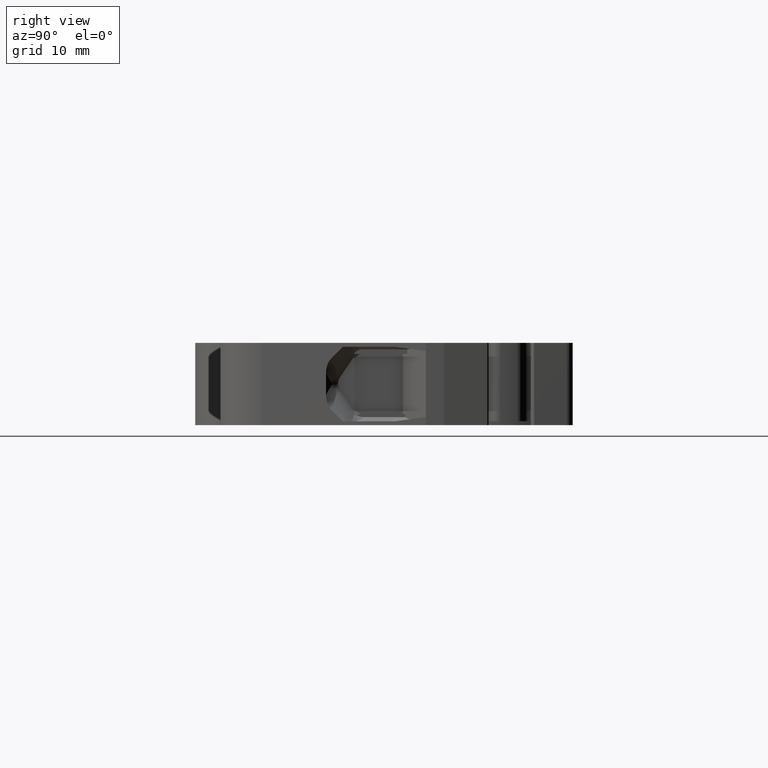
[diagram: clean part render]
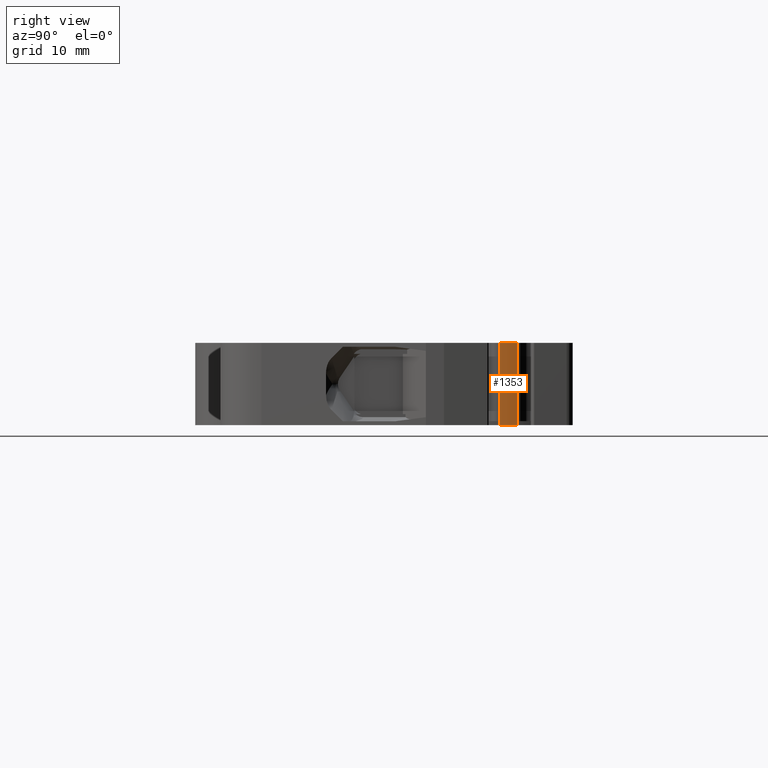
[diagram: same view with one face highlighted and labeled with its STEP entity id]
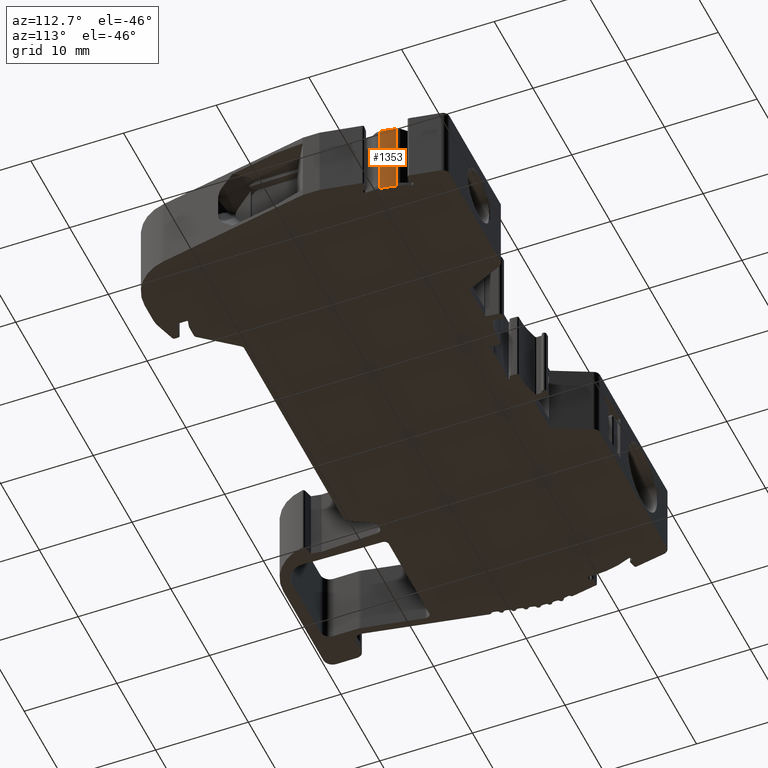
[diagram: same view with one face highlighted and labeled with its STEP entity id]
A machine part, right view. The second image highlights one B-rep face of the part: STEP entity #1353.
A second angle (auxiliary view) of the same face is appended — the face is thin or edge-on in the first view.
In plain terms, the highlighted cylindrical surface (partial cylindrical patch) has radius 9.8365 mm, axis along (0, 0, -1).
Its self-contained STEP definition (entity closure, byte-faithful):
#384 = CARTESIAN_POINT ( 'NONE',  ( -147.9012724906285996, 90.14066837655231268, 8.200000000000001066 ) ) ;
#925 = DIRECTION ( 'NONE',  ( 1.000000000000000000, 0.0000000000000000000, 0.0000000000000000000 ) ) ;
#1206 = CARTESIAN_POINT ( 'NONE',  ( -148.2047203201559853, 91.86160653536100540, 8.200000000000001066 ) ) ;
#1338 = DIRECTION ( 'NONE',  ( 0.0000000000000000000, 0.0000000000000000000, -1.000000000000000000 ) ) ;
#1353 = ADVANCED_FACE ( 'NONE', ( #7564 ), #9497, .T. ) ;
#1659 = LINE ( 'NONE', #8180, #8524 ) ;
#1893 = DIRECTION ( 'NONE',  ( 0.0000000000000000000, 0.0000000000000000000, 1.000000000000000000 ) ) ;
#1986 = DIRECTION ( 'NONE',  ( 1.000000000000000000, 0.0000000000000000000, 0.0000000000000000000 ) ) ;
#2540 = AXIS2_PLACEMENT_3D ( 'NONE', #4002, #11373, #10333 ) ;
#2610 = CIRCLE ( 'NONE', #3191, 9.836478962804179105 ) ;
#2728 = VERTEX_POINT ( 'NONE', #1206 ) ;
#2917 = EDGE_CURVE ( 'NONE', #11890, #7099, #2610, .T. ) ;
#3191 = AXIS2_PLACEMENT_3D ( 'NONE', #3672, #5671, #1986 ) ;
#3419 = EDGE_CURVE ( 'NONE', #7363, #2728, #8951, .T. ) ;
#3538 = ORIENTED_EDGE ( 'NONE', *, *, #11622, .F. ) ;
#3672 = CARTESIAN_POINT ( 'NONE',  ( -157.7017450992375132, 89.29980273116349565, 0.0000000000000000000 ) ) ;
#4002 = CARTESIAN_POINT ( 'NONE',  ( -157.7017450992375132, 89.29980273116349565, 8.200000000000001066 ) ) ;
#4327 = AXIS2_PLACEMENT_3D ( 'NONE', #10212, #1893, #925 ) ;
#5570 = EDGE_CURVE ( 'NONE', #7363, #11890, #6836, .T. ) ;
#5601 = ORIENTED_EDGE ( 'NONE', *, *, #2917, .T. ) ;
#5671 = DIRECTION ( 'NONE',  ( 0.0000000000000000000, 0.0000000000000000000, 1.000000000000000000 ) ) ;
#6533 = ORIENTED_EDGE ( 'NONE', *, *, #3419, .F. ) ;
#6836 = LINE ( 'NONE', #384, #9210 ) ;
#7099 = VERTEX_POINT ( 'NONE', #11483 ) ;
#7363 = VERTEX_POINT ( 'NONE', #11041 ) ;
#7564 = FACE_OUTER_BOUND ( 'NONE', #8432, .T. ) ;
#8162 = CARTESIAN_POINT ( 'NONE',  ( -147.9012724906285996, 90.14066837655231268, 0.0000000000000000000 ) ) ;
#8180 = CARTESIAN_POINT ( 'NONE',  ( -148.2047203201559853, 91.86160653536100540, 8.200000000000001066 ) ) ;
#8432 = EDGE_LOOP ( 'NONE', ( #5601, #3538, #6533, #11268 ) ) ;
#8524 = VECTOR ( 'NONE', #11872, 1000.000000000000000 ) ;
#8951 = CIRCLE ( 'NONE', #4327, 9.836478962804179105 ) ;
#9210 = VECTOR ( 'NONE', #1338, 1000.000000000000000 ) ;
#9497 = CYLINDRICAL_SURFACE ( 'NONE', #2540, 9.836478962804179105 ) ;
#10212 = CARTESIAN_POINT ( 'NONE',  ( -157.7017450992375132, 89.29980273116349565, 8.200000000000001066 ) ) ;
#10333 = DIRECTION ( 'NONE',  ( -1.000000000000000000, 0.0000000000000000000, 0.0000000000000000000 ) ) ;
#11041 = CARTESIAN_POINT ( 'NONE',  ( -147.9012724906285996, 90.14066837655231268, 8.200000000000001066 ) ) ;
#11268 = ORIENTED_EDGE ( 'NONE', *, *, #5570, .T. ) ;
#11373 = DIRECTION ( 'NONE',  ( 0.0000000000000000000, 0.0000000000000000000, -1.000000000000000000 ) ) ;
#11483 = CARTESIAN_POINT ( 'NONE',  ( -148.2047203201559853, 91.86160653536100540, 0.0000000000000000000 ) ) ;
#11622 = EDGE_CURVE ( 'NONE', #2728, #7099, #1659, .T. ) ;
#11872 = DIRECTION ( 'NONE',  ( 0.0000000000000000000, 0.0000000000000000000, -1.000000000000000000 ) ) ;
#11890 = VERTEX_POINT ( 'NONE', #8162 ) ;